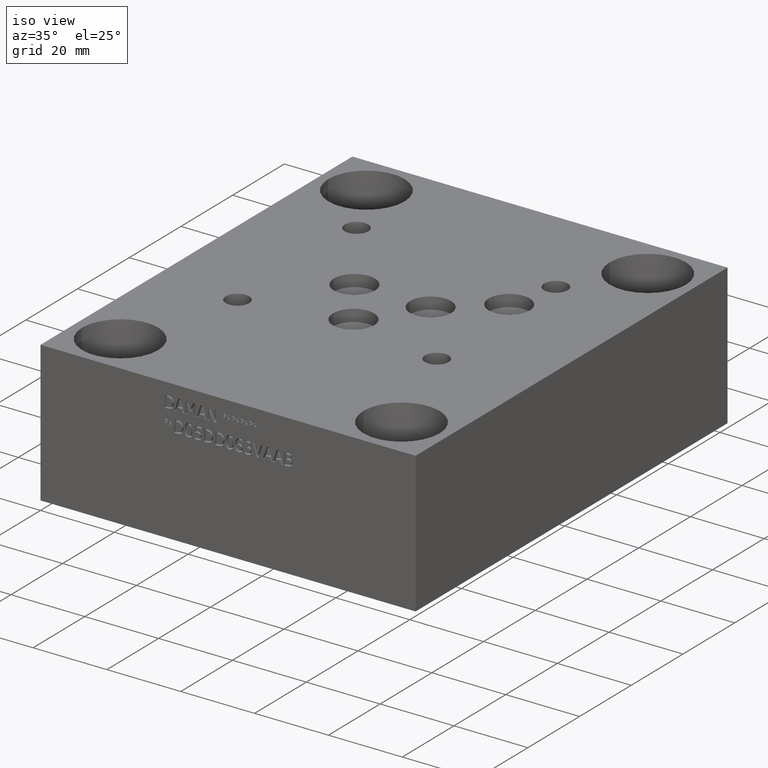
[diagram: clean part render]
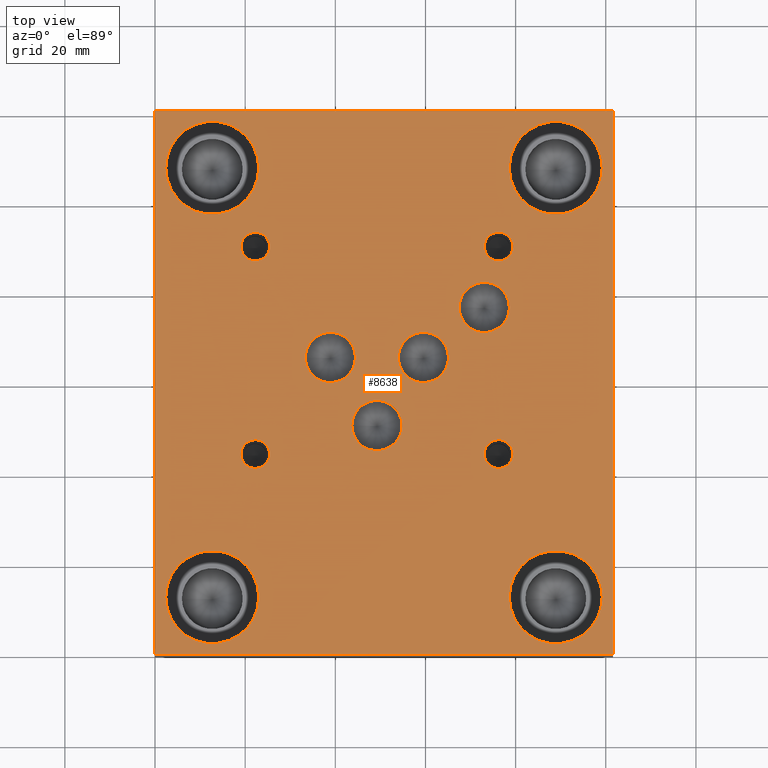
[diagram: tour spotlight — one face highlighted and labeled with its STEP entity id]
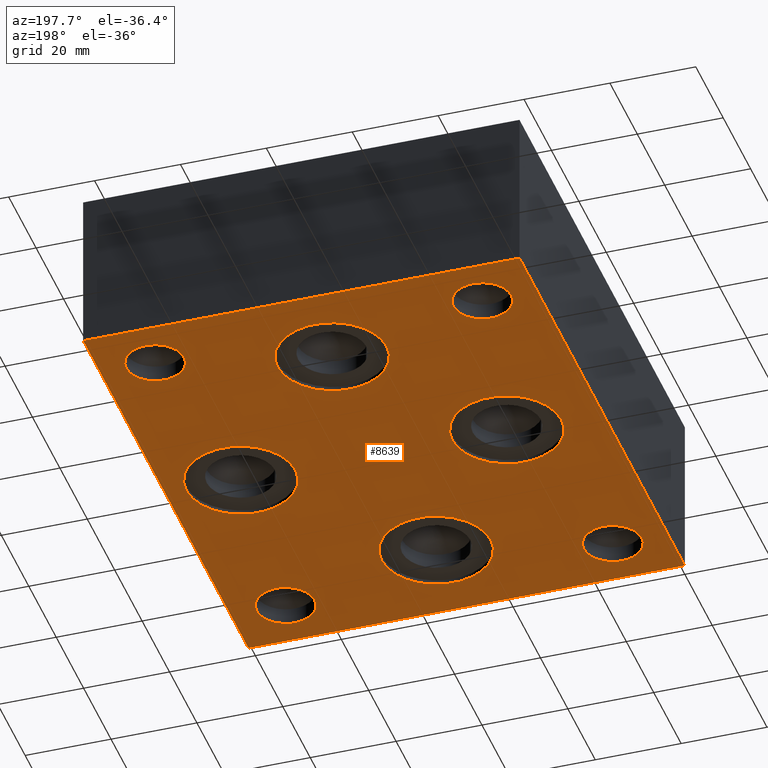
[diagram: tour spotlight — one face highlighted and labeled with its STEP entity id]
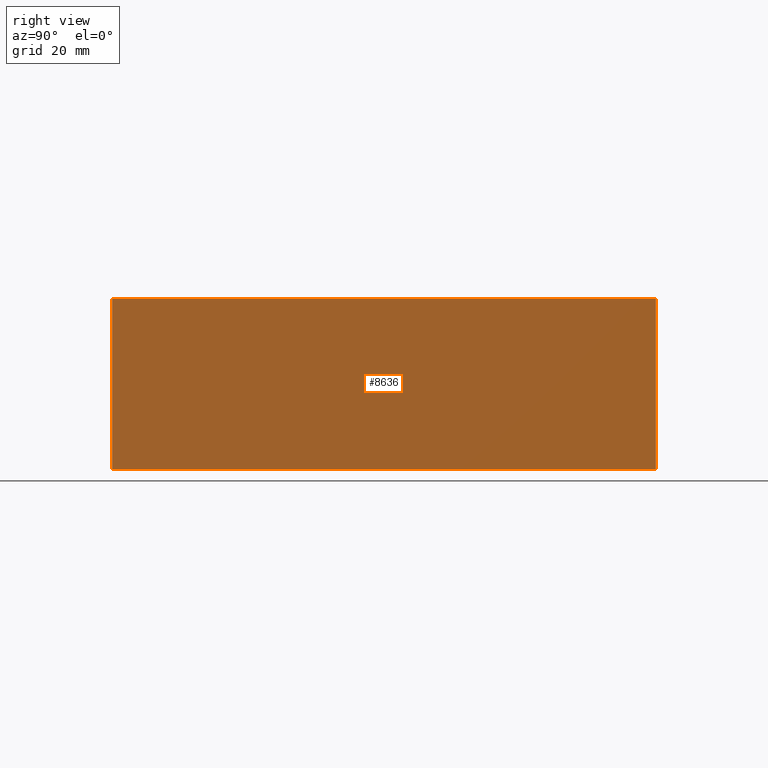
[diagram: tour spotlight — one face highlighted and labeled with its STEP entity id]
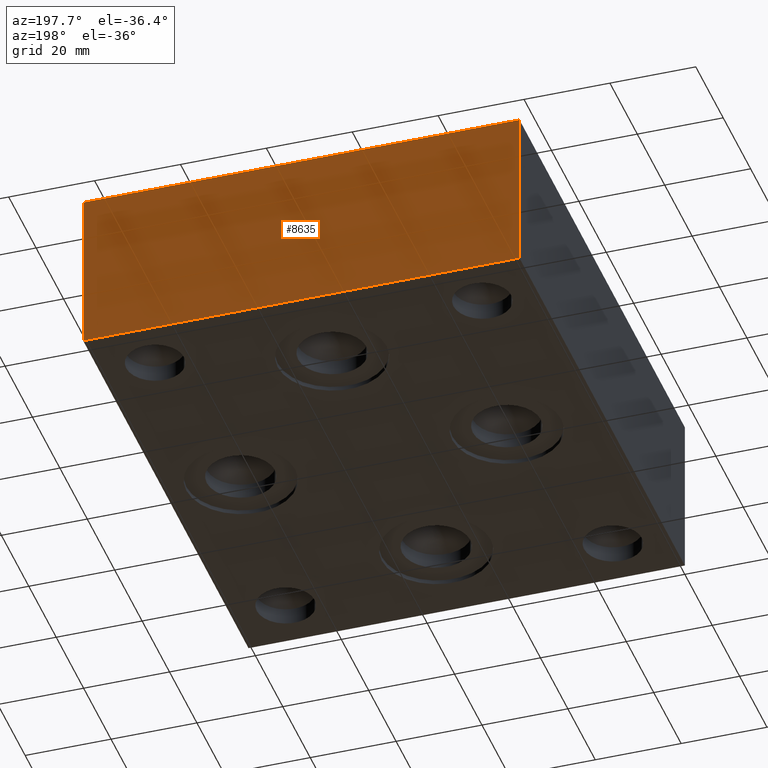
[diagram: tour spotlight — one face highlighted and labeled with its STEP entity id]
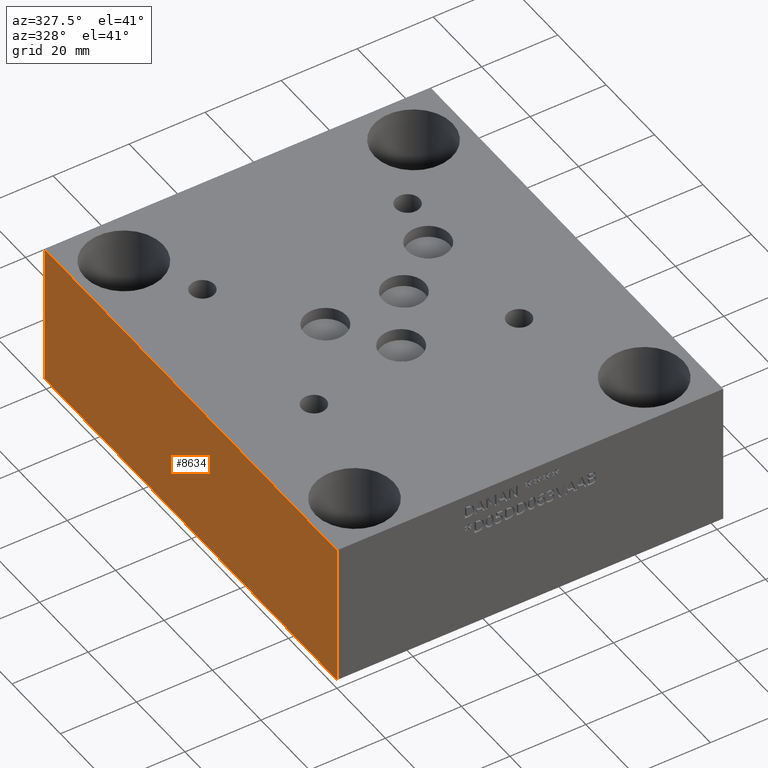
[diagram: tour spotlight — one face highlighted and labeled with its STEP entity id]
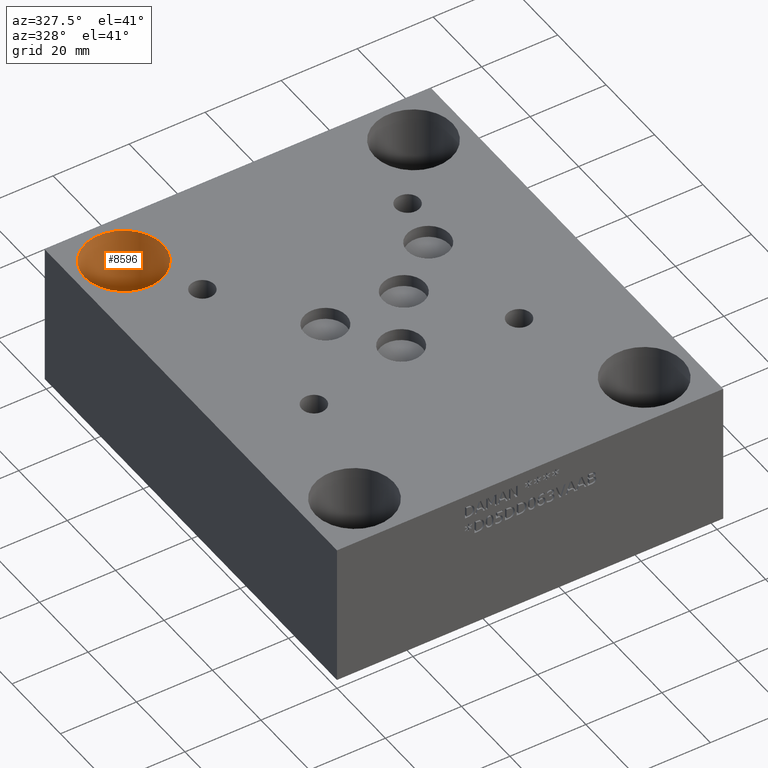
[diagram: tour spotlight — one face highlighted and labeled with its STEP entity id]
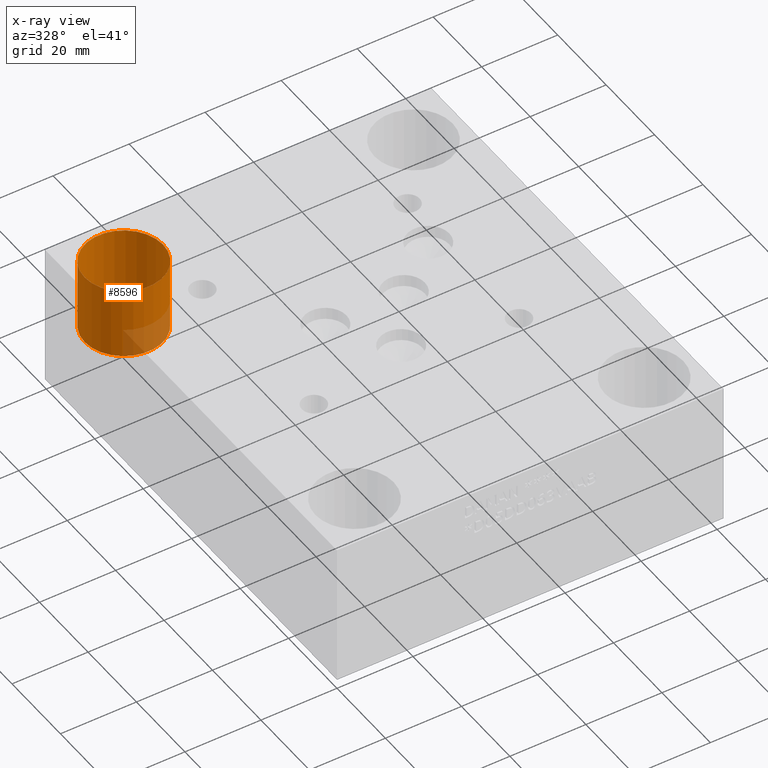
[diagram: x-ray of the same camera — body ghosted, this tour face saturated]
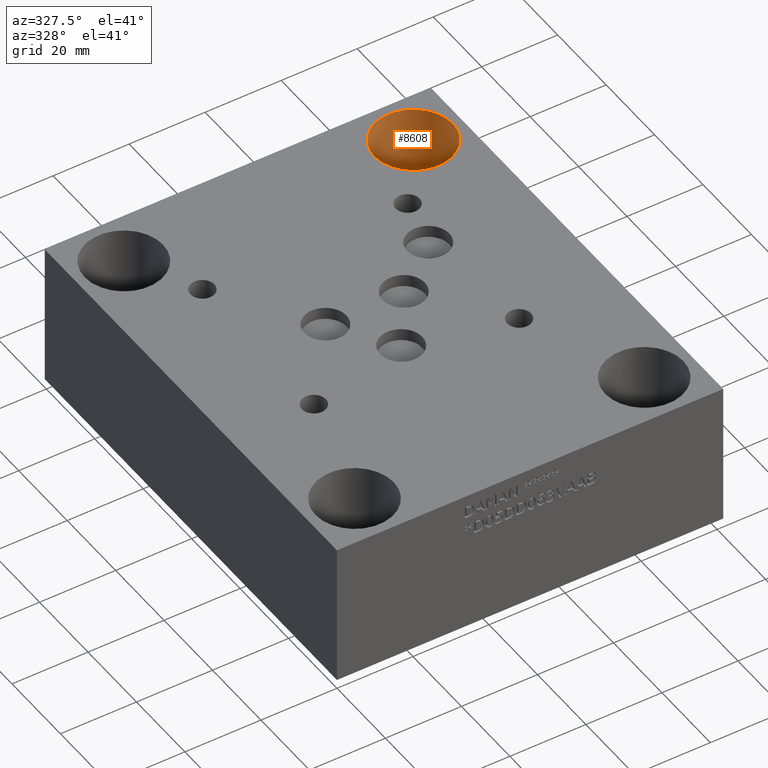
[diagram: tour spotlight — one face highlighted and labeled with its STEP entity id]
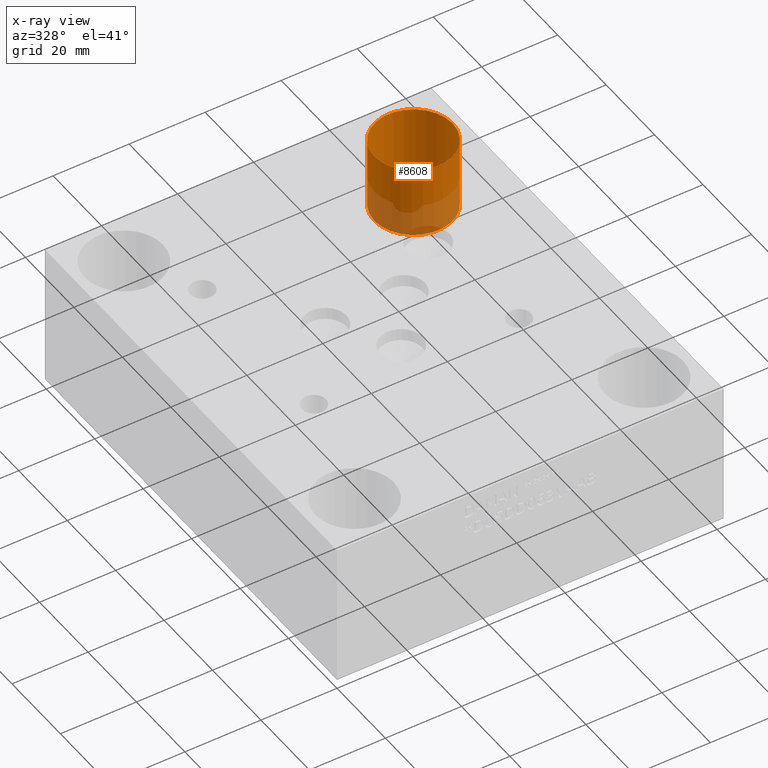
[diagram: x-ray of the same camera — body ghosted, this tour face saturated]
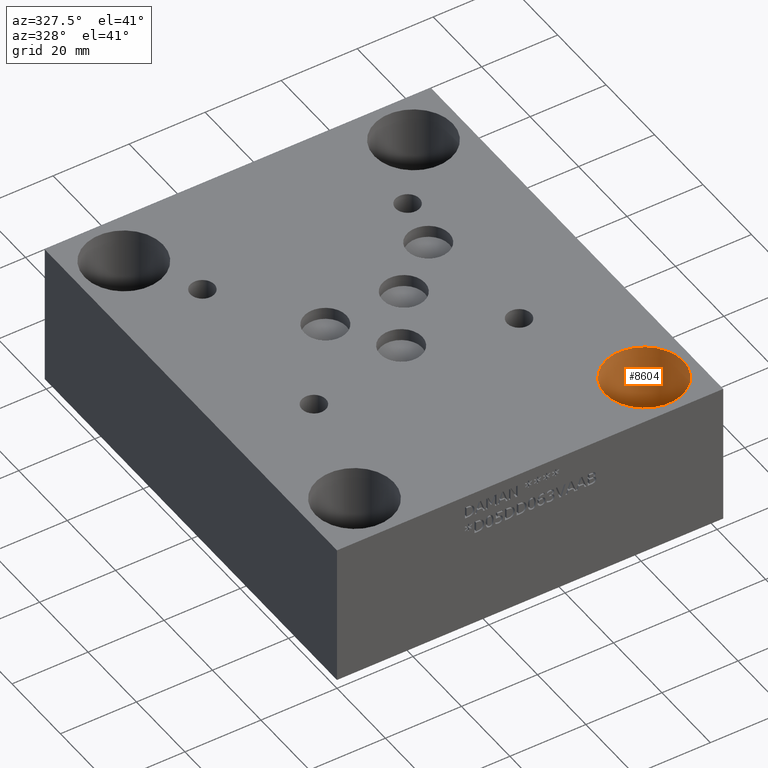
[diagram: tour spotlight — one face highlighted and labeled with its STEP entity id]
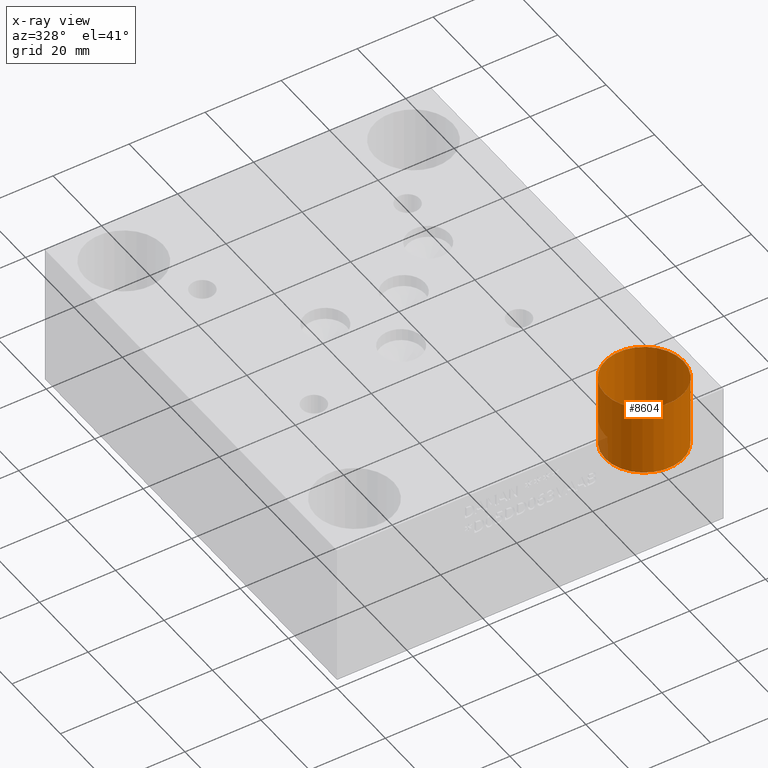
[diagram: x-ray of the same camera — body ghosted, this tour face saturated]
A machine part: a face-by-face anatomy tour. The part has 439 B-rep faces; the first image is the clean iso view, then the 8 largest visible faces are spotlighted one at a time (largest first), each with its STEP entity span.

Face 1 — top view, entity #8638. In plain terms, the highlighted planar face has unit normal (0, 0, 1).
Definition (entity closure, byte-faithful):
#83=CIRCLE('',#8978,10.3124);
#84=CIRCLE('',#8979,10.3124);
#90=CIRCLE('',#8989,10.3124);
#91=CIRCLE('',#8990,10.3124);
#97=CIRCLE('',#9000,10.3124);
#98=CIRCLE('',#9001,10.3124);
#104=CIRCLE('',#9011,10.3124);
#105=CIRCLE('',#9012,10.3124);
#108=CIRCLE('',#9018,5.5626);
#109=CIRCLE('',#9019,5.5626);
#112=CIRCLE('',#9024,5.5626);
#113=CIRCLE('',#9025,5.5626);
#116=CIRCLE('',#9030,5.5626);
#117=CIRCLE('',#9031,5.5626);
#120=CIRCLE('',#9036,5.5626);
#121=CIRCLE('',#9037,5.5626);
#127=CIRCLE('',#9046,3.175);
#128=CIRCLE('',#9047,3.175);
#134=CIRCLE('',#9057,3.175);
#135=CIRCLE('',#9058,3.175);
#141=CIRCLE('',#9068,3.175);
#142=CIRCLE('',#9069,3.175);
#148=CIRCLE('',#9079,3.175);
#149=CIRCLE('',#9080,3.175);
#228=FACE_BOUND('',#1534,.T.);
#229=FACE_BOUND('',#1535,.T.);
#230=FACE_BOUND('',#1536,.T.);
#231=FACE_BOUND('',#1537,.T.);
#232=FACE_BOUND('',#1538,.T.);
#233=FACE_BOUND('',#1539,.T.);
#234=FACE_BOUND('',#1540,.T.);
#235=FACE_BOUND('',#1541,.T.);
#236=FACE_BOUND('',#1542,.T.);
#237=FACE_BOUND('',#1543,.T.);
#238=FACE_BOUND('',#1544,.T.);
#239=FACE_BOUND('',#1545,.T.);
#1048=FACE_OUTER_BOUND('',#1533,.T.);
#1533=EDGE_LOOP('',(#7530,#7531,#7532,#7533));
#1534=EDGE_LOOP('',(#7534,#7535));
#1535=EDGE_LOOP('',(#7536,#7537));
#1536=EDGE_LOOP('',(#7538,#7539));
#1537=EDGE_LOOP('',(#7540,#7541));
#1538=EDGE_LOOP('',(#7542,#7543));
#1539=EDGE_LOOP('',(#7544,#7545));
#1540=EDGE_LOOP('',(#7546,#7547));
#1541=EDGE_LOOP('',(#7548,#7549));
#1542=EDGE_LOOP('',(#7550,#7551));
#1543=EDGE_LOOP('',(#7552,#7553));
#1544=EDGE_LOOP('',(#7554,#7555));
#1545=EDGE_LOOP('',(#7556,#7557));
#1943=LINE('',#13498,#2770);
#2375=LINE('',#14783,#3202);
#2378=LINE('',#14789,#3205);
#2381=LINE('',#14793,#3208);
#2770=VECTOR('',#9686,10.);
#3202=VECTOR('',#10768,10.);
#3205=VECTOR('',#10773,10.);
#3208=VECTOR('',#10778,10.);
#3619=VERTEX_POINT('',#13495);
#3620=VERTEX_POINT('',#13497);
#3941=VERTEX_POINT('',#14566);
#3942=VERTEX_POINT('',#14567);
#3949=VERTEX_POINT('',#14588);
#3950=VERTEX_POINT('',#14589);
#3957=VERTEX_POINT('',#14610);
#3958=VERTEX_POINT('',#14611);
#3965=VERTEX_POINT('',#14632);
#3966=VERTEX_POINT('',#14633);
#3970=VERTEX_POINT('',#14647);
#3971=VERTEX_POINT('',#14648);
#3975=VERTEX_POINT('',#14660);
#3976=VERTEX_POINT('',#14661);
#3980=VERTEX_POINT('',#14673);
#3981=VERTEX_POINT('',#14674);
#3985=VERTEX_POINT('',#14686);
#3986=VERTEX_POINT('',#14687);
#3993=VERTEX_POINT('',#14706);
#3994=VERTEX_POINT('',#14707);
#4001=VERTEX_POINT('',#14728);
#4002=VERTEX_POINT('',#14729);
#4009=VERTEX_POINT('',#14750);
#4010=VERTEX_POINT('',#14751);
#4017=VERTEX_POINT('',#14772);
#4018=VERTEX_POINT('',#14773);
#4020=VERTEX_POINT('',#14782);
#4022=VERTEX_POINT('',#14788);
#4637=EDGE_CURVE('',#3620,#3619,#1943,.T.);
#5102=EDGE_CURVE('',#3941,#3942,#83,.T.);
#5103=EDGE_CURVE('',#3942,#3941,#84,.T.);
#5112=EDGE_CURVE('',#3949,#3950,#90,.T.);
#5113=EDGE_CURVE('',#3950,#3949,#91,.T.);
#5122=EDGE_CURVE('',#3957,#3958,#97,.T.);
#5123=EDGE_CURVE('',#3958,#3957,#98,.T.);
#5132=EDGE_CURVE('',#3965,#3966,#104,.T.);
#5133=EDGE_CURVE('',#3966,#3965,#105,.T.);
#5139=EDGE_CURVE('',#3970,#3971,#108,.T.);
#5140=EDGE_CURVE('',#3971,#3970,#109,.T.);
#5145=EDGE_CURVE('',#3975,#3976,#112,.T.);
#5146=EDGE_CURVE('',#3976,#3975,#113,.T.);
#5151=EDGE_CURVE('',#3980,#3981,#116,.T.);
#5152=EDGE_CURVE('',#3981,#3980,#117,.T.);
#5157=EDGE_CURVE('',#3985,#3986,#120,.T.);
#5158=EDGE_CURVE('',#3986,#3985,#121,.T.);
#5166=EDGE_CURVE('',#3993,#3994,#127,.T.);
#5167=EDGE_CURVE('',#3994,#3993,#128,.T.);
#5176=EDGE_CURVE('',#4001,#4002,#134,.T.);
#5177=EDGE_CURVE('',#4002,#4001,#135,.T.);
#5186=EDGE_CURVE('',#4009,#4010,#141,.T.);
#5187=EDGE_CURVE('',#4010,#4009,#142,.T.);
#5196=EDGE_CURVE('',#4017,#4018,#148,.T.);
#5197=EDGE_CURVE('',#4018,#4017,#149,.T.);
#5201=EDGE_CURVE('',#4020,#3620,#2375,.T.);
#5204=EDGE_CURVE('',#4022,#4020,#2378,.T.);
#5207=EDGE_CURVE('',#3619,#4022,#2381,.T.);
#7530=ORIENTED_EDGE('',*,*,#4637,.T.);
#7531=ORIENTED_EDGE('',*,*,#5207,.T.);
#7532=ORIENTED_EDGE('',*,*,#5204,.T.);
#7533=ORIENTED_EDGE('',*,*,#5201,.T.);
#7534=ORIENTED_EDGE('',*,*,#5102,.T.);
#7535=ORIENTED_EDGE('',*,*,#5103,.T.);
#7536=ORIENTED_EDGE('',*,*,#5112,.T.);
#7537=ORIENTED_EDGE('',*,*,#5113,.T.);
#7538=ORIENTED_EDGE('',*,*,#5122,.T.);
#7539=ORIENTED_EDGE('',*,*,#5123,.T.);
#7540=ORIENTED_EDGE('',*,*,#5132,.T.);
#7541=ORIENTED_EDGE('',*,*,#5133,.T.);
#7542=ORIENTED_EDGE('',*,*,#5139,.T.);
#7543=ORIENTED_EDGE('',*,*,#5140,.T.);
#7544=ORIENTED_EDGE('',*,*,#5145,.T.);
#7545=ORIENTED_EDGE('',*,*,#5146,.T.);
#7546=ORIENTED_EDGE('',*,*,#5151,.T.);
#7547=ORIENTED_EDGE('',*,*,#5152,.T.);
#7548=ORIENTED_EDGE('',*,*,#5157,.T.);
#7549=ORIENTED_EDGE('',*,*,#5158,.T.);
#7550=ORIENTED_EDGE('',*,*,#5166,.T.);
#7551=ORIENTED_EDGE('',*,*,#5167,.T.);
#7552=ORIENTED_EDGE('',*,*,#5176,.T.);
#7553=ORIENTED_EDGE('',*,*,#5177,.T.);
#7554=ORIENTED_EDGE('',*,*,#5186,.T.);
#7555=ORIENTED_EDGE('',*,*,#5187,.T.);
#7556=ORIENTED_EDGE('',*,*,#5196,.T.);
#7557=ORIENTED_EDGE('',*,*,#5197,.T.);
#7842=PLANE('',#9086);
#8638=ADVANCED_FACE('',(#1048,#228,#229,#230,#231,#232,#233,#234,#235,#236,
#237,#238,#239),#7842,.T.);
#8978=AXIS2_PLACEMENT_3D('',#14568,#10526,#10527);
#8979=AXIS2_PLACEMENT_3D('',#14569,#10528,#10529);
#8989=AXIS2_PLACEMENT_3D('',#14590,#10551,#10552);
#8990=AXIS2_PLACEMENT_3D('',#14591,#10553,#10554);
#9000=AXIS2_PLACEMENT_3D('',#14612,#10576,#10577);
#9001=AXIS2_PLACEMENT_3D('',#14613,#10578,#10579);
#9011=AXIS2_PLACEMENT_3D('',#14634,#10601,#10602);
#9012=AXIS2_PLACEMENT_3D('',#14635,#10603,#10604);
#9018=AXIS2_PLACEMENT_3D('',#14649,#10618,#10619);
#9019=AXIS2_PLACEMENT_3D('',#14650,#10620,#10621);
#9024=AXIS2_PLACEMENT_3D('',#14662,#10632,#10633);
#9025=AXIS2_PLACEMENT_3D('',#14663,#10634,#10635);
#9030=AXIS2_PLACEMENT_3D('',#14675,#10646,#10647);
#9031=AXIS2_PLACEMENT_3D('',#14676,#10648,#10649);
#9036=AXIS2_PLACEMENT_3D('',#14688,#10660,#10661);
#9037=AXIS2_PLACEMENT_3D('',#14689,#10662,#10663);
#9046=AXIS2_PLACEMENT_3D('',#14708,#10682,#10683);
#9047=AXIS2_PLACEMENT_3D('',#14709,#10684,#10685);
#9057=AXIS2_PLACEMENT_3D('',#14730,#10707,#10708);
#9058=AXIS2_PLACEMENT_3D('',#14731,#10709,#10710);
#9068=AXIS2_PLACEMENT_3D('',#14752,#10732,#10733);
#9069=AXIS2_PLACEMENT_3D('',#14753,#10734,#10735);
#9079=AXIS2_PLACEMENT_3D('',#14774,#10757,#10758);
#9080=AXIS2_PLACEMENT_3D('',#14775,#10759,#10760);
#9086=AXIS2_PLACEMENT_3D('',#14795,#10781,#10782);
#9686=DIRECTION('',(1.,0.,0.));
#10526=DIRECTION('center_axis',(0.,0.,-1.));
#10527=DIRECTION('ref_axis',(1.,0.,0.));
#10528=DIRECTION('center_axis',(0.,0.,-1.));
#10529=DIRECTION('ref_axis',(1.,0.,0.));
#10551=DIRECTION('center_axis',(0.,0.,-1.));
#10552=DIRECTION('ref_axis',(1.,0.,0.));
#10553=DIRECTION('center_axis',(0.,0.,-1.));
#10554=DIRECTION('ref_axis',(1.,0.,0.));
#10576=DIRECTION('center_axis',(0.,0.,-1.));
#10577=DIRECTION('ref_axis',(1.,0.,0.));
#10578=DIRECTION('center_axis',(0.,0.,-1.));
#10579=DIRECTION('ref_axis',(1.,0.,0.));
#10601=DIRECTION('center_axis',(0.,0.,-1.));
#10602=DIRECTION('ref_axis',(1.,0.,0.));
#10603=DIRECTION('center_axis',(0.,0.,-1.));
#10604=DIRECTION('ref_axis',(1.,0.,0.));
#10618=DIRECTION('center_axis',(0.,0.,-1.));
#10619=DIRECTION('ref_axis',(1.,0.,0.));
#10620=DIRECTION('center_axis',(0.,0.,-1.));
#10621=DIRECTION('ref_axis',(1.,0.,0.));
#10632=DIRECTION('center_axis',(0.,0.,-1.));
#10633=DIRECTION('ref_axis',(1.,0.,0.));
#10634=DIRECTION('center_axis',(0.,0.,-1.));
#10635=DIRECTION('ref_axis',(1.,0.,0.));
#10646=DIRECTION('center_axis',(0.,0.,-1.));
#10647=DIRECTION('ref_axis',(1.,0.,0.));
#10648=DIRECTION('center_axis',(0.,0.,-1.));
#10649=DIRECTION('ref_axis',(1.,0.,0.));
#10660=DIRECTION('center_axis',(0.,0.,-1.));
#10661=DIRECTION('ref_axis',(1.,0.,0.));
#10662=DIRECTION('center_axis',(0.,0.,-1.));
#10663=DIRECTION('ref_axis',(1.,0.,0.));
#10682=DIRECTION('center_axis',(0.,0.,-1.));
#10683=DIRECTION('ref_axis',(1.,0.,0.));
#10684=DIRECTION('center_axis',(0.,0.,-1.));
#10685=DIRECTION('ref_axis',(1.,0.,0.));
#10707=DIRECTION('center_axis',(0.,0.,-1.));
#10708=DIRECTION('ref_axis',(1.,0.,0.));
#10709=DIRECTION('center_axis',(0.,0.,-1.));
#10710=DIRECTION('ref_axis',(1.,0.,0.));
#10732=DIRECTION('center_axis',(0.,0.,-1.));
#10733=DIRECTION('ref_axis',(1.,0.,0.));
#10734=DIRECTION('center_axis',(0.,0.,-1.));
#10735=DIRECTION('ref_axis',(1.,0.,0.));
#10757=DIRECTION('center_axis',(0.,0.,-1.));
#10758=DIRECTION('ref_axis',(1.,0.,0.));
#10759=DIRECTION('center_axis',(0.,0.,-1.));
#10760=DIRECTION('ref_axis',(1.,0.,0.));
#10768=DIRECTION('',(0.,-1.,0.));
#10773=DIRECTION('',(-1.,0.,0.));
#10778=DIRECTION('',(0.,1.,0.));
#10781=DIRECTION('center_axis',(0.,0.,1.));
#10782=DIRECTION('ref_axis',(1.,0.,0.));
#13495=CARTESIAN_POINT('',(101.6,0.,38.1));
#13497=CARTESIAN_POINT('',(0.,0.,38.1));
#13498=CARTESIAN_POINT('',(0.,0.,38.1));
#14566=CARTESIAN_POINT('',(23.0124,107.95,38.1));
#14567=CARTESIAN_POINT('',(2.3876,107.95,38.1));
#14568=CARTESIAN_POINT('Origin',(12.7,107.95,38.1));
#14569=CARTESIAN_POINT('Origin',(12.7,107.95,38.1));
#14588=CARTESIAN_POINT('',(23.0124,12.7,38.1));
#14589=CARTESIAN_POINT('',(2.3876,12.7,38.1));
#14590=CARTESIAN_POINT('Origin',(12.7,12.7,38.1));
#14591=CARTESIAN_POINT('Origin',(12.7,12.7,38.1));
#14610=CARTESIAN_POINT('',(99.2124,12.7,38.1));
#14611=CARTESIAN_POINT('',(78.5876,12.7,38.1));
#14612=CARTESIAN_POINT('Origin',(88.9,12.7,38.1));
#14613=CARTESIAN_POINT('Origin',(88.9,12.7,38.1));
#14632=CARTESIAN_POINT('',(99.2124,107.95,38.1));
#14633=CARTESIAN_POINT('',(78.5876,107.95,38.1));
#14634=CARTESIAN_POINT('Origin',(88.9,107.95,38.1));
#14635=CARTESIAN_POINT('Origin',(88.9,107.95,38.1));
#14647=CARTESIAN_POINT('',(65.10528,65.8749,38.1));
#14648=CARTESIAN_POINT('',(53.98008,65.8749,38.1));
#14649=CARTESIAN_POINT('Origin',(59.54268,65.8749,38.1));
#14650=CARTESIAN_POINT('Origin',(59.54268,65.8749,38.1));
#14660=CARTESIAN_POINT('',(54.7878,50.7746,38.1));
#14661=CARTESIAN_POINT('',(43.6626,50.7746,38.1));
#14662=CARTESIAN_POINT('Origin',(49.2252,50.7746,38.1));
#14663=CARTESIAN_POINT('Origin',(49.2252,50.7746,38.1));
#14673=CARTESIAN_POINT('',(78.613,76.9874,38.1));
#14674=CARTESIAN_POINT('',(67.4878,76.9874,38.1));
#14675=CARTESIAN_POINT('Origin',(73.0504,76.9874,38.1));
#14676=CARTESIAN_POINT('Origin',(73.0504,76.9874,38.1));
#14686=CARTESIAN_POINT('',(44.47032,65.86982,38.1));
#14687=CARTESIAN_POINT('',(33.34512,65.86982,38.1));
#14688=CARTESIAN_POINT('Origin',(38.90772,65.86982,38.1));
#14689=CARTESIAN_POINT('Origin',(38.90772,65.86982,38.1));
#14706=CARTESIAN_POINT('',(25.4127,44.45,38.1));
#14707=CARTESIAN_POINT('',(19.0627,44.45,38.1));
#14708=CARTESIAN_POINT('Origin',(22.2377,44.45,38.1));
#14709=CARTESIAN_POINT('Origin',(22.2377,44.45,38.1));
#14728=CARTESIAN_POINT('',(79.4004,90.5002,38.1));
#14729=CARTESIAN_POINT('',(73.0504,90.5002,38.1));
#14730=CARTESIAN_POINT('Origin',(76.2254,90.5002,38.1));
#14731=CARTESIAN_POINT('Origin',(76.2254,90.5002,38.1));
#14750=CARTESIAN_POINT('',(79.3877,44.45,38.1));
#14751=CARTESIAN_POINT('',(73.0377,44.45,38.1));
#14752=CARTESIAN_POINT('Origin',(76.2127,44.45,38.1));
#14753=CARTESIAN_POINT('Origin',(76.2127,44.45,38.1));
#14772=CARTESIAN_POINT('',(25.4127,90.4875,38.1));
#14773=CARTESIAN_POINT('',(19.0627,90.4875,38.1));
#14774=CARTESIAN_POINT('Origin',(22.2377,90.4875,38.1));
#14775=CARTESIAN_POINT('Origin',(22.2377,90.4875,38.1));
#14782=CARTESIAN_POINT('',(0.,120.65,38.1));
#14783=CARTESIAN_POINT('',(0.,120.65,38.1));
#14788=CARTESIAN_POINT('',(101.6,120.65,38.1));
#14789=CARTESIAN_POINT('',(101.6,120.65,38.1));
#14793=CARTESIAN_POINT('',(101.6,0.,38.1));
#14795=CARTESIAN_POINT('Origin',(50.8,60.325,38.1));

Face 2 — auxiliary view, entity #8639. In plain terms, the highlighted planar face has unit normal (0, 0, 1).
Definition (entity closure, byte-faithful):
#34=CIRCLE('',#8903,12.7);
#35=CIRCLE('',#8904,12.7);
#39=CIRCLE('',#8910,12.7);
#40=CIRCLE('',#8911,12.7);
#44=CIRCLE('',#8917,12.7);
#45=CIRCLE('',#8918,12.7);
#49=CIRCLE('',#8924,12.7);
#50=CIRCLE('',#8925,12.7);
#64=CIRCLE('',#8950,6.7437);
#65=CIRCLE('',#8951,6.7437);
#68=CIRCLE('',#8956,6.7437);
#69=CIRCLE('',#8957,6.7437);
#72=CIRCLE('',#8962,6.7437);
#73=CIRCLE('',#8963,6.7437);
#76=CIRCLE('',#8968,6.7437);
#77=CIRCLE('',#8969,6.7437);
#240=FACE_BOUND('',#1547,.T.);
#241=FACE_BOUND('',#1548,.T.);
#242=FACE_BOUND('',#1549,.T.);
#243=FACE_BOUND('',#1550,.T.);
#244=FACE_BOUND('',#1551,.T.);
#245=FACE_BOUND('',#1552,.T.);
#246=FACE_BOUND('',#1553,.T.);
#247=FACE_BOUND('',#1554,.T.);
#1049=FACE_OUTER_BOUND('',#1546,.T.);
#1546=EDGE_LOOP('',(#7558,#7559,#7560,#7561));
#1547=EDGE_LOOP('',(#7562,#7563));
#1548=EDGE_LOOP('',(#7564,#7565));
#1549=EDGE_LOOP('',(#7566,#7567));
#1550=EDGE_LOOP('',(#7568,#7569));
#1551=EDGE_LOOP('',(#7570,#7571));
#1552=EDGE_LOOP('',(#7572,#7573));
#1553=EDGE_LOOP('',(#7574,#7575));
#1554=EDGE_LOOP('',(#7576,#7577));
#1941=LINE('',#13494,#2768);
#2374=LINE('',#14781,#3201);
#2377=LINE('',#14787,#3204);
#2380=LINE('',#14792,#3207);
#2768=VECTOR('',#9684,10.);
#3201=VECTOR('',#10767,10.);
#3204=VECTOR('',#10772,10.);
#3207=VECTOR('',#10777,10.);
#3617=VERTEX_POINT('',#13492);
#3618=VERTEX_POINT('',#13493);
#3883=VERTEX_POINT('',#14412);
#3884=VERTEX_POINT('',#14413);
#3888=VERTEX_POINT('',#14425);
#3889=VERTEX_POINT('',#14426);
#3893=VERTEX_POINT('',#14438);
#3894=VERTEX_POINT('',#14439);
#3898=VERTEX_POINT('',#14451);
#3899=VERTEX_POINT('',#14452);
#3918=VERTEX_POINT('',#14507);
#3919=VERTEX_POINT('',#14508);
#3923=VERTEX_POINT('',#14520);
#3924=VERTEX_POINT('',#14521);
#3928=VERTEX_POINT('',#14533);
#3929=VERTEX_POINT('',#14534);
#3933=VERTEX_POINT('',#14546);
#3934=VERTEX_POINT('',#14547);
#4019=VERTEX_POINT('',#14780);
#4021=VERTEX_POINT('',#14786);
#4635=EDGE_CURVE('',#3617,#3618,#1941,.T.);
#5032=EDGE_CURVE('',#3883,#3884,#34,.T.);
#5033=EDGE_CURVE('',#3884,#3883,#35,.T.);
#5038=EDGE_CURVE('',#3888,#3889,#39,.T.);
#5039=EDGE_CURVE('',#3889,#3888,#40,.T.);
#5044=EDGE_CURVE('',#3893,#3894,#44,.T.);
#5045=EDGE_CURVE('',#3894,#3893,#45,.T.);
#5050=EDGE_CURVE('',#3898,#3899,#49,.T.);
#5051=EDGE_CURVE('',#3899,#3898,#50,.T.);
#5075=EDGE_CURVE('',#3918,#3919,#64,.T.);
#5076=EDGE_CURVE('',#3919,#3918,#65,.T.);
#5081=EDGE_CURVE('',#3923,#3924,#68,.T.);
#5082=EDGE_CURVE('',#3924,#3923,#69,.T.);
#5087=EDGE_CURVE('',#3928,#3929,#72,.T.);
#5088=EDGE_CURVE('',#3929,#3928,#73,.T.);
#5093=EDGE_CURVE('',#3933,#3934,#76,.T.);
#5094=EDGE_CURVE('',#3934,#3933,#77,.T.);
#5200=EDGE_CURVE('',#4019,#3617,#2374,.T.);
#5203=EDGE_CURVE('',#4021,#4019,#2377,.T.);
#5206=EDGE_CURVE('',#3618,#4021,#2380,.T.);
#7558=ORIENTED_EDGE('',*,*,#4635,.F.);
#7559=ORIENTED_EDGE('',*,*,#5200,.F.);
#7560=ORIENTED_EDGE('',*,*,#5203,.F.);
#7561=ORIENTED_EDGE('',*,*,#5206,.F.);
#7562=ORIENTED_EDGE('',*,*,#5032,.T.);
#7563=ORIENTED_EDGE('',*,*,#5033,.T.);
#7564=ORIENTED_EDGE('',*,*,#5038,.T.);
#7565=ORIENTED_EDGE('',*,*,#5039,.T.);
#7566=ORIENTED_EDGE('',*,*,#5044,.T.);
#7567=ORIENTED_EDGE('',*,*,#5045,.T.);
#7568=ORIENTED_EDGE('',*,*,#5050,.T.);
#7569=ORIENTED_EDGE('',*,*,#5051,.T.);
#7570=ORIENTED_EDGE('',*,*,#5075,.T.);
#7571=ORIENTED_EDGE('',*,*,#5076,.T.);
#7572=ORIENTED_EDGE('',*,*,#5081,.T.);
#7573=ORIENTED_EDGE('',*,*,#5082,.T.);
#7574=ORIENTED_EDGE('',*,*,#5087,.T.);
#7575=ORIENTED_EDGE('',*,*,#5088,.T.);
#7576=ORIENTED_EDGE('',*,*,#5093,.T.);
#7577=ORIENTED_EDGE('',*,*,#5094,.T.);
#7843=PLANE('',#9087);
#8639=ADVANCED_FACE('',(#1049,#240,#241,#242,#243,#244,#245,#246,#247),
#7843,.F.);
#8903=AXIS2_PLACEMENT_3D('',#14414,#10355,#10356);
#8904=AXIS2_PLACEMENT_3D('',#14415,#10357,#10358);
#8910=AXIS2_PLACEMENT_3D('',#14427,#10370,#10371);
#8911=AXIS2_PLACEMENT_3D('',#14428,#10372,#10373);
#8917=AXIS2_PLACEMENT_3D('',#14440,#10385,#10386);
#8918=AXIS2_PLACEMENT_3D('',#14441,#10387,#10388);
#8924=AXIS2_PLACEMENT_3D('',#14453,#10400,#10401);
#8925=AXIS2_PLACEMENT_3D('',#14454,#10402,#10403);
#8950=AXIS2_PLACEMENT_3D('',#14509,#10462,#10463);
#8951=AXIS2_PLACEMENT_3D('',#14510,#10464,#10465);
#8956=AXIS2_PLACEMENT_3D('',#14522,#10476,#10477);
#8957=AXIS2_PLACEMENT_3D('',#14523,#10478,#10479);
#8962=AXIS2_PLACEMENT_3D('',#14535,#10490,#10491);
#8963=AXIS2_PLACEMENT_3D('',#14536,#10492,#10493);
#8968=AXIS2_PLACEMENT_3D('',#14548,#10504,#10505);
#8969=AXIS2_PLACEMENT_3D('',#14549,#10506,#10507);
#9087=AXIS2_PLACEMENT_3D('',#14796,#10783,#10784);
#9684=DIRECTION('',(1.,0.,0.));
#10355=DIRECTION('center_axis',(0.,0.,1.));
#10356=DIRECTION('ref_axis',(1.,0.,0.));
#10357=DIRECTION('center_axis',(0.,0.,1.));
#10358=DIRECTION('ref_axis',(1.,0.,0.));
#10370=DIRECTION('center_axis',(0.,0.,1.));
#10371=DIRECTION('ref_axis',(1.,0.,0.));
#10372=DIRECTION('center_axis',(0.,0.,1.));
#10373=DIRECTION('ref_axis',(1.,0.,0.));
#10385=DIRECTION('center_axis',(0.,0.,1.));
#10386=DIRECTION('ref_axis',(1.,0.,0.));
#10387=DIRECTION('center_axis',(0.,0.,1.));
#10388=DIRECTION('ref_axis',(1.,0.,0.));
#10400=DIRECTION('center_axis',(0.,0.,1.));
#10401=DIRECTION('ref_axis',(1.,0.,0.));
#10402=DIRECTION('center_axis',(0.,0.,1.));
#10403=DIRECTION('ref_axis',(1.,0.,0.));
#10462=DIRECTION('center_axis',(0.,0.,1.));
#10463=DIRECTION('ref_axis',(1.,0.,0.));
#10464=DIRECTION('center_axis',(0.,0.,1.));
#10465=DIRECTION('ref_axis',(1.,0.,0.));
#10476=DIRECTION('center_axis',(0.,0.,1.));
#10477=DIRECTION('ref_axis',(1.,0.,0.));
#10478=DIRECTION('center_axis',(0.,0.,1.));
#10479=DIRECTION('ref_axis',(1.,0.,0.));
#10490=DIRECTION('center_axis',(0.,0.,1.));
#10491=DIRECTION('ref_axis',(1.,0.,0.));
#10492=DIRECTION('center_axis',(0.,0.,1.));
#10493=DIRECTION('ref_axis',(1.,0.,0.));
#10504=DIRECTION('center_axis',(0.,0.,1.));
#10505=DIRECTION('ref_axis',(1.,0.,0.));
#10506=DIRECTION('center_axis',(0.,0.,1.));
#10507=DIRECTION('ref_axis',(1.,0.,0.));
#10767=DIRECTION('',(0.,-1.,0.));
#10772=DIRECTION('',(-1.,0.,0.));
#10777=DIRECTION('',(0.,1.,0.));
#10783=DIRECTION('center_axis',(0.,0.,1.));
#10784=DIRECTION('ref_axis',(1.,0.,0.));
#13492=CARTESIAN_POINT('',(0.,0.,0.));
#13493=CARTESIAN_POINT('',(101.6,0.,0.));
#13494=CARTESIAN_POINT('',(0.,0.,0.));
#14412=CARTESIAN_POINT('',(96.8375,60.3504,0.));
#14413=CARTESIAN_POINT('',(71.4375,60.3504,0.));
#14414=CARTESIAN_POINT('Origin',(84.1375,60.3504,0.));
#14415=CARTESIAN_POINT('Origin',(84.1375,60.3504,0.));
#14425=CARTESIAN_POINT('',(63.5,22.225,0.));
#14426=CARTESIAN_POINT('',(38.1,22.225,0.));
#14427=CARTESIAN_POINT('Origin',(50.8,22.225,0.));
#14428=CARTESIAN_POINT('Origin',(50.8,22.225,0.));
#14438=CARTESIAN_POINT('',(34.8996,60.3504,0.));
#14439=CARTESIAN_POINT('',(9.4996,60.3504,0.));
#14440=CARTESIAN_POINT('Origin',(22.1996,60.3504,0.));
#14441=CARTESIAN_POINT('Origin',(22.1996,60.3504,0.));
#14451=CARTESIAN_POINT('',(63.5,98.171,0.));
#14452=CARTESIAN_POINT('',(38.1,98.171,0.));
#14453=CARTESIAN_POINT('Origin',(50.8,98.171,0.));
#14454=CARTESIAN_POINT('Origin',(50.8,98.171,0.));
#14507=CARTESIAN_POINT('',(95.6437,107.95,0.));
#14508=CARTESIAN_POINT('',(82.1563,107.95,0.));
#14509=CARTESIAN_POINT('Origin',(88.9,107.95,0.));
#14510=CARTESIAN_POINT('Origin',(88.9,107.95,0.));
#14520=CARTESIAN_POINT('',(19.4437,107.95,0.));
#14521=CARTESIAN_POINT('',(5.9563,107.95,0.));
#14522=CARTESIAN_POINT('Origin',(12.7,107.95,0.));
#14523=CARTESIAN_POINT('Origin',(12.7,107.95,0.));
#14533=CARTESIAN_POINT('',(19.4437,12.7,0.));
#14534=CARTESIAN_POINT('',(5.9563,12.7,0.));
#14535=CARTESIAN_POINT('Origin',(12.7,12.7,0.));
#14536=CARTESIAN_POINT('Origin',(12.7,12.7,0.));
#14546=CARTESIAN_POINT('',(95.6437,12.7,0.));
#14547=CARTESIAN_POINT('',(82.1563,12.7,0.));
#14548=CARTESIAN_POINT('Origin',(88.9,12.7,0.));
#14549=CARTESIAN_POINT('Origin',(88.9,12.7,0.));
#14780=CARTESIAN_POINT('',(0.,120.65,0.));
#14781=CARTESIAN_POINT('',(0.,120.65,0.));
#14786=CARTESIAN_POINT('',(101.6,120.65,0.));
#14787=CARTESIAN_POINT('',(101.6,120.65,0.));
#14792=CARTESIAN_POINT('',(101.6,0.,0.));
#14796=CARTESIAN_POINT('Origin',(50.8,60.325,0.));

Face 3 — right view, entity #8636. In plain terms, the highlighted planar face has unit normal (1, 0, 0).
Definition (entity closure, byte-faithful):
#1046=FACE_OUTER_BOUND('',#1531,.T.);
#1531=EDGE_LOOP('',(#7523,#7524,#7525,#7526));
#1942=LINE('',#13496,#2769);
#2379=LINE('',#14790,#3206);
#2380=LINE('',#14792,#3207);
#2381=LINE('',#14793,#3208);
#2769=VECTOR('',#9685,10.);
#3206=VECTOR('',#10774,10.);
#3207=VECTOR('',#10777,10.);
#3208=VECTOR('',#10778,10.);
#3618=VERTEX_POINT('',#13493);
#3619=VERTEX_POINT('',#13495);
#4021=VERTEX_POINT('',#14786);
#4022=VERTEX_POINT('',#14788);
#4636=EDGE_CURVE('',#3618,#3619,#1942,.T.);
#5205=EDGE_CURVE('',#4021,#4022,#2379,.T.);
#5206=EDGE_CURVE('',#3618,#4021,#2380,.T.);
#5207=EDGE_CURVE('',#3619,#4022,#2381,.T.);
#7523=ORIENTED_EDGE('',*,*,#5206,.T.);
#7524=ORIENTED_EDGE('',*,*,#5205,.T.);
#7525=ORIENTED_EDGE('',*,*,#5207,.F.);
#7526=ORIENTED_EDGE('',*,*,#4636,.F.);
#7840=PLANE('',#9084);
#8636=ADVANCED_FACE('',(#1046),#7840,.T.);
#9084=AXIS2_PLACEMENT_3D('',#14791,#10775,#10776);
#9685=DIRECTION('',(0.,0.,1.));
#10774=DIRECTION('',(0.,0.,1.));
#10775=DIRECTION('center_axis',(1.,0.,0.));
#10776=DIRECTION('ref_axis',(0.,1.,0.));
#10777=DIRECTION('',(0.,1.,0.));
#10778=DIRECTION('',(0.,1.,0.));
#13493=CARTESIAN_POINT('',(101.6,0.,0.));
#13495=CARTESIAN_POINT('',(101.6,0.,38.1));
#13496=CARTESIAN_POINT('',(101.6,0.,0.));
#14786=CARTESIAN_POINT('',(101.6,120.65,0.));
#14788=CARTESIAN_POINT('',(101.6,120.65,38.1));
#14790=CARTESIAN_POINT('',(101.6,120.65,0.));
#14791=CARTESIAN_POINT('Origin',(101.6,0.,0.));
#14792=CARTESIAN_POINT('',(101.6,0.,0.));
#14793=CARTESIAN_POINT('',(101.6,0.,38.1));

Face 4 — auxiliary view, entity #8635. In plain terms, the highlighted planar face has unit normal (0, 1, 0).
Definition (entity closure, byte-faithful):
#1045=FACE_OUTER_BOUND('',#1530,.T.);
#1530=EDGE_LOOP('',(#7519,#7520,#7521,#7522));
#2376=LINE('',#14784,#3203);
#2377=LINE('',#14787,#3204);
#2378=LINE('',#14789,#3205);
#2379=LINE('',#14790,#3206);
#3203=VECTOR('',#10769,10.);
#3204=VECTOR('',#10772,10.);
#3205=VECTOR('',#10773,10.);
#3206=VECTOR('',#10774,10.);
#4019=VERTEX_POINT('',#14780);
#4020=VERTEX_POINT('',#14782);
#4021=VERTEX_POINT('',#14786);
#4022=VERTEX_POINT('',#14788);
#5202=EDGE_CURVE('',#4019,#4020,#2376,.T.);
#5203=EDGE_CURVE('',#4021,#4019,#2377,.T.);
#5204=EDGE_CURVE('',#4022,#4020,#2378,.T.);
#5205=EDGE_CURVE('',#4021,#4022,#2379,.T.);
#7519=ORIENTED_EDGE('',*,*,#5203,.T.);
#7520=ORIENTED_EDGE('',*,*,#5202,.T.);
#7521=ORIENTED_EDGE('',*,*,#5204,.F.);
#7522=ORIENTED_EDGE('',*,*,#5205,.F.);
#7839=PLANE('',#9083);
#8635=ADVANCED_FACE('',(#1045),#7839,.T.);
#9083=AXIS2_PLACEMENT_3D('',#14785,#10770,#10771);
#10769=DIRECTION('',(0.,0.,1.));
#10770=DIRECTION('center_axis',(0.,1.,0.));
#10771=DIRECTION('ref_axis',(-1.,0.,0.));
#10772=DIRECTION('',(-1.,0.,0.));
#10773=DIRECTION('',(-1.,0.,0.));
#10774=DIRECTION('',(0.,0.,1.));
#14780=CARTESIAN_POINT('',(0.,120.65,0.));
#14782=CARTESIAN_POINT('',(0.,120.65,38.1));
#14784=CARTESIAN_POINT('',(0.,120.65,0.));
#14785=CARTESIAN_POINT('Origin',(101.6,120.65,0.));
#14786=CARTESIAN_POINT('',(101.6,120.65,0.));
#14787=CARTESIAN_POINT('',(101.6,120.65,0.));
#14788=CARTESIAN_POINT('',(101.6,120.65,38.1));
#14789=CARTESIAN_POINT('',(101.6,120.65,38.1));
#14790=CARTESIAN_POINT('',(101.6,120.65,0.));

Face 5 — auxiliary view, entity #8634. In plain terms, the highlighted planar face has unit normal (-1, 0, 0).
Definition (entity closure, byte-faithful):
#1044=FACE_OUTER_BOUND('',#1529,.T.);
#1529=EDGE_LOOP('',(#7515,#7516,#7517,#7518));
#1944=LINE('',#13499,#2771);
#2374=LINE('',#14781,#3201);
#2375=LINE('',#14783,#3202);
#2376=LINE('',#14784,#3203);
#2771=VECTOR('',#9687,10.);
#3201=VECTOR('',#10767,10.);
#3202=VECTOR('',#10768,10.);
#3203=VECTOR('',#10769,10.);
#3617=VERTEX_POINT('',#13492);
#3620=VERTEX_POINT('',#13497);
#4019=VERTEX_POINT('',#14780);
#4020=VERTEX_POINT('',#14782);
#4638=EDGE_CURVE('',#3617,#3620,#1944,.T.);
#5200=EDGE_CURVE('',#4019,#3617,#2374,.T.);
#5201=EDGE_CURVE('',#4020,#3620,#2375,.T.);
#5202=EDGE_CURVE('',#4019,#4020,#2376,.T.);
#7515=ORIENTED_EDGE('',*,*,#5200,.T.);
#7516=ORIENTED_EDGE('',*,*,#4638,.T.);
#7517=ORIENTED_EDGE('',*,*,#5201,.F.);
#7518=ORIENTED_EDGE('',*,*,#5202,.F.);
#7838=PLANE('',#9082);
#8634=ADVANCED_FACE('',(#1044),#7838,.T.);
#9082=AXIS2_PLACEMENT_3D('',#14779,#10765,#10766);
#9687=DIRECTION('',(0.,0.,1.));
#10765=DIRECTION('center_axis',(-1.,0.,0.));
#10766=DIRECTION('ref_axis',(0.,-1.,0.));
#10767=DIRECTION('',(0.,-1.,0.));
#10768=DIRECTION('',(0.,-1.,0.));
#10769=DIRECTION('',(0.,0.,1.));
#13492=CARTESIAN_POINT('',(0.,0.,0.));
#13497=CARTESIAN_POINT('',(0.,0.,38.1));
#13499=CARTESIAN_POINT('',(0.,0.,0.));
#14779=CARTESIAN_POINT('Origin',(0.,120.65,0.));
#14780=CARTESIAN_POINT('',(0.,120.65,0.));
#14781=CARTESIAN_POINT('',(0.,120.65,0.));
#14782=CARTESIAN_POINT('',(0.,120.65,38.1));
#14783=CARTESIAN_POINT('',(0.,120.65,38.1));
#14784=CARTESIAN_POINT('',(0.,120.65,0.));

Face 6 — auxiliary view, entity #8596. An x-ray twin of the same camera follows (body ghosted, this face saturated) — the face is partly hidden behind the body. In plain terms, the highlighted cylindrical surface (bore or boss wall) has radius 10.3124 mm, axis along (0, 0, 1).
Definition (entity closure, byte-faithful):
#80=CIRCLE('',#8974,10.3124);
#81=CIRCLE('',#8975,10.3124);
#83=CIRCLE('',#8978,10.3124);
#84=CIRCLE('',#8979,10.3124);
#162=CYLINDRICAL_SURFACE('',#8977,10.3124);
#1006=FACE_OUTER_BOUND('',#1484,.T.);
#1484=EDGE_LOOP('',(#7338,#7339,#7340,#7341,#7342,#7343));
#2343=LINE('',#14570,#3170);
#3170=VECTOR('',#10530,10.3124);
#3938=VERTEX_POINT('',#14559);
#3939=VERTEX_POINT('',#14560);
#3941=VERTEX_POINT('',#14566);
#3942=VERTEX_POINT('',#14567);
#5099=EDGE_CURVE('',#3938,#3939,#80,.T.);
#5100=EDGE_CURVE('',#3939,#3938,#81,.T.);
#5102=EDGE_CURVE('',#3941,#3942,#83,.T.);
#5103=EDGE_CURVE('',#3942,#3941,#84,.T.);
#5104=EDGE_CURVE('',#3942,#3939,#2343,.T.);
#7338=ORIENTED_EDGE('',*,*,#5102,.F.);
#7339=ORIENTED_EDGE('',*,*,#5103,.F.);
#7340=ORIENTED_EDGE('',*,*,#5104,.T.);
#7341=ORIENTED_EDGE('',*,*,#5099,.F.);
#7342=ORIENTED_EDGE('',*,*,#5100,.F.);
#7343=ORIENTED_EDGE('',*,*,#5104,.F.);
#8596=ADVANCED_FACE('',(#1006),#162,.F.);
#8974=AXIS2_PLACEMENT_3D('',#14561,#10518,#10519);
#8975=AXIS2_PLACEMENT_3D('',#14562,#10520,#10521);
#8977=AXIS2_PLACEMENT_3D('',#14565,#10524,#10525);
#8978=AXIS2_PLACEMENT_3D('',#14568,#10526,#10527);
#8979=AXIS2_PLACEMENT_3D('',#14569,#10528,#10529);
#10518=DIRECTION('center_axis',(0.,0.,1.));
#10519=DIRECTION('ref_axis',(1.,0.,0.));
#10520=DIRECTION('center_axis',(0.,0.,1.));
#10521=DIRECTION('ref_axis',(1.,0.,0.));
#10524=DIRECTION('center_axis',(0.,0.,1.));
#10525=DIRECTION('ref_axis',(1.,0.,0.));
#10526=DIRECTION('center_axis',(0.,0.,-1.));
#10527=DIRECTION('ref_axis',(1.,0.,0.));
#10528=DIRECTION('center_axis',(0.,0.,-1.));
#10529=DIRECTION('ref_axis',(1.,0.,0.));
#10530=DIRECTION('',(0.,0.,-1.));
#14559=CARTESIAN_POINT('',(23.0124,107.95,19.05));
#14560=CARTESIAN_POINT('',(2.3876,107.95,19.05));
#14561=CARTESIAN_POINT('Origin',(12.7,107.95,19.05));
#14562=CARTESIAN_POINT('Origin',(12.7,107.95,19.05));
#14565=CARTESIAN_POINT('Origin',(12.7,107.95,28.575));
#14566=CARTESIAN_POINT('',(23.0124,107.95,38.1));
#14567=CARTESIAN_POINT('',(2.3876,107.95,38.1));
#14568=CARTESIAN_POINT('Origin',(12.7,107.95,38.1));
#14569=CARTESIAN_POINT('Origin',(12.7,107.95,38.1));
#14570=CARTESIAN_POINT('',(2.3876,107.95,28.575));

Face 7 — auxiliary view, entity #8608. An x-ray twin of the same camera follows (body ghosted, this face saturated) — the face is partly hidden behind the body. In plain terms, the highlighted cylindrical surface (bore or boss wall) has radius 10.3124 mm, axis along (0, 0, 1).
Definition (entity closure, byte-faithful):
#101=CIRCLE('',#9007,10.3124);
#102=CIRCLE('',#9008,10.3124);
#104=CIRCLE('',#9011,10.3124);
#105=CIRCLE('',#9012,10.3124);
#168=CYLINDRICAL_SURFACE('',#9010,10.3124);
#1018=FACE_OUTER_BOUND('',#1499,.T.);
#1499=EDGE_LOOP('',(#7392,#7393,#7394,#7395,#7396,#7397));
#2352=LINE('',#14636,#3179);
#3179=VECTOR('',#10605,10.3124);
#3962=VERTEX_POINT('',#14625);
#3963=VERTEX_POINT('',#14626);
#3965=VERTEX_POINT('',#14632);
#3966=VERTEX_POINT('',#14633);
#5129=EDGE_CURVE('',#3962,#3963,#101,.T.);
#5130=EDGE_CURVE('',#3963,#3962,#102,.T.);
#5132=EDGE_CURVE('',#3965,#3966,#104,.T.);
#5133=EDGE_CURVE('',#3966,#3965,#105,.T.);
#5134=EDGE_CURVE('',#3966,#3963,#2352,.T.);
#7392=ORIENTED_EDGE('',*,*,#5132,.F.);
#7393=ORIENTED_EDGE('',*,*,#5133,.F.);
#7394=ORIENTED_EDGE('',*,*,#5134,.T.);
#7395=ORIENTED_EDGE('',*,*,#5129,.F.);
#7396=ORIENTED_EDGE('',*,*,#5130,.F.);
#7397=ORIENTED_EDGE('',*,*,#5134,.F.);
#8608=ADVANCED_FACE('',(#1018),#168,.F.);
#9007=AXIS2_PLACEMENT_3D('',#14627,#10593,#10594);
#9008=AXIS2_PLACEMENT_3D('',#14628,#10595,#10596);
#9010=AXIS2_PLACEMENT_3D('',#14631,#10599,#10600);
#9011=AXIS2_PLACEMENT_3D('',#14634,#10601,#10602);
#9012=AXIS2_PLACEMENT_3D('',#14635,#10603,#10604);
#10593=DIRECTION('center_axis',(0.,0.,1.));
#10594=DIRECTION('ref_axis',(1.,0.,0.));
#10595=DIRECTION('center_axis',(0.,0.,1.));
#10596=DIRECTION('ref_axis',(1.,0.,0.));
#10599=DIRECTION('center_axis',(0.,0.,1.));
#10600=DIRECTION('ref_axis',(1.,0.,0.));
#10601=DIRECTION('center_axis',(0.,0.,-1.));
#10602=DIRECTION('ref_axis',(1.,0.,0.));
#10603=DIRECTION('center_axis',(0.,0.,-1.));
#10604=DIRECTION('ref_axis',(1.,0.,0.));
#10605=DIRECTION('',(0.,0.,-1.));
#14625=CARTESIAN_POINT('',(99.2124,107.95,19.05));
#14626=CARTESIAN_POINT('',(78.5876,107.95,19.05));
#14627=CARTESIAN_POINT('Origin',(88.9,107.95,19.05));
#14628=CARTESIAN_POINT('Origin',(88.9,107.95,19.05));
#14631=CARTESIAN_POINT('Origin',(88.9,107.95,28.575));
#14632=CARTESIAN_POINT('',(99.2124,107.95,38.1));
#14633=CARTESIAN_POINT('',(78.5876,107.95,38.1));
#14634=CARTESIAN_POINT('Origin',(88.9,107.95,38.1));
#14635=CARTESIAN_POINT('Origin',(88.9,107.95,38.1));
#14636=CARTESIAN_POINT('',(78.5876,107.95,28.575));

Face 8 — auxiliary view, entity #8604. An x-ray twin of the same camera follows (body ghosted, this face saturated) — the face is partly hidden behind the body. In plain terms, the highlighted cylindrical surface (bore or boss wall) has radius 10.3124 mm, axis along (0, 0, 1).
Definition (entity closure, byte-faithful):
#94=CIRCLE('',#8996,10.3124);
#95=CIRCLE('',#8997,10.3124);
#97=CIRCLE('',#9000,10.3124);
#98=CIRCLE('',#9001,10.3124);
#166=CYLINDRICAL_SURFACE('',#8999,10.3124);
#1014=FACE_OUTER_BOUND('',#1494,.T.);
#1494=EDGE_LOOP('',(#7374,#7375,#7376,#7377,#7378,#7379));
#2349=LINE('',#14614,#3176);
#3176=VECTOR('',#10580,10.3124);
#3954=VERTEX_POINT('',#14603);
#3955=VERTEX_POINT('',#14604);
#3957=VERTEX_POINT('',#14610);
#3958=VERTEX_POINT('',#14611);
#5119=EDGE_CURVE('',#3954,#3955,#94,.T.);
#5120=EDGE_CURVE('',#3955,#3954,#95,.T.);
#5122=EDGE_CURVE('',#3957,#3958,#97,.T.);
#5123=EDGE_CURVE('',#3958,#3957,#98,.T.);
#5124=EDGE_CURVE('',#3958,#3955,#2349,.T.);
#7374=ORIENTED_EDGE('',*,*,#5122,.F.);
#7375=ORIENTED_EDGE('',*,*,#5123,.F.);
#7376=ORIENTED_EDGE('',*,*,#5124,.T.);
#7377=ORIENTED_EDGE('',*,*,#5119,.F.);
#7378=ORIENTED_EDGE('',*,*,#5120,.F.);
#7379=ORIENTED_EDGE('',*,*,#5124,.F.);
#8604=ADVANCED_FACE('',(#1014),#166,.F.);
#8996=AXIS2_PLACEMENT_3D('',#14605,#10568,#10569);
#8997=AXIS2_PLACEMENT_3D('',#14606,#10570,#10571);
#8999=AXIS2_PLACEMENT_3D('',#14609,#10574,#10575);
#9000=AXIS2_PLACEMENT_3D('',#14612,#10576,#10577);
#9001=AXIS2_PLACEMENT_3D('',#14613,#10578,#10579);
#10568=DIRECTION('center_axis',(0.,0.,1.));
#10569=DIRECTION('ref_axis',(1.,0.,0.));
#10570=DIRECTION('center_axis',(0.,0.,1.));
#10571=DIRECTION('ref_axis',(1.,0.,0.));
#10574=DIRECTION('center_axis',(0.,0.,1.));
#10575=DIRECTION('ref_axis',(1.,0.,0.));
#10576=DIRECTION('center_axis',(0.,0.,-1.));
#10577=DIRECTION('ref_axis',(1.,0.,0.));
#10578=DIRECTION('center_axis',(0.,0.,-1.));
#10579=DIRECTION('ref_axis',(1.,0.,0.));
#10580=DIRECTION('',(0.,0.,-1.));
#14603=CARTESIAN_POINT('',(99.2124,12.7,19.05));
#14604=CARTESIAN_POINT('',(78.5876,12.7,19.05));
#14605=CARTESIAN_POINT('Origin',(88.9,12.7,19.05));
#14606=CARTESIAN_POINT('Origin',(88.9,12.7,19.05));
#14609=CARTESIAN_POINT('Origin',(88.9,12.7,28.575));
#14610=CARTESIAN_POINT('',(99.2124,12.7,38.1));
#14611=CARTESIAN_POINT('',(78.5876,12.7,38.1));
#14612=CARTESIAN_POINT('Origin',(88.9,12.7,38.1));
#14613=CARTESIAN_POINT('Origin',(88.9,12.7,38.1));
#14614=CARTESIAN_POINT('',(78.5876,12.7,28.575));